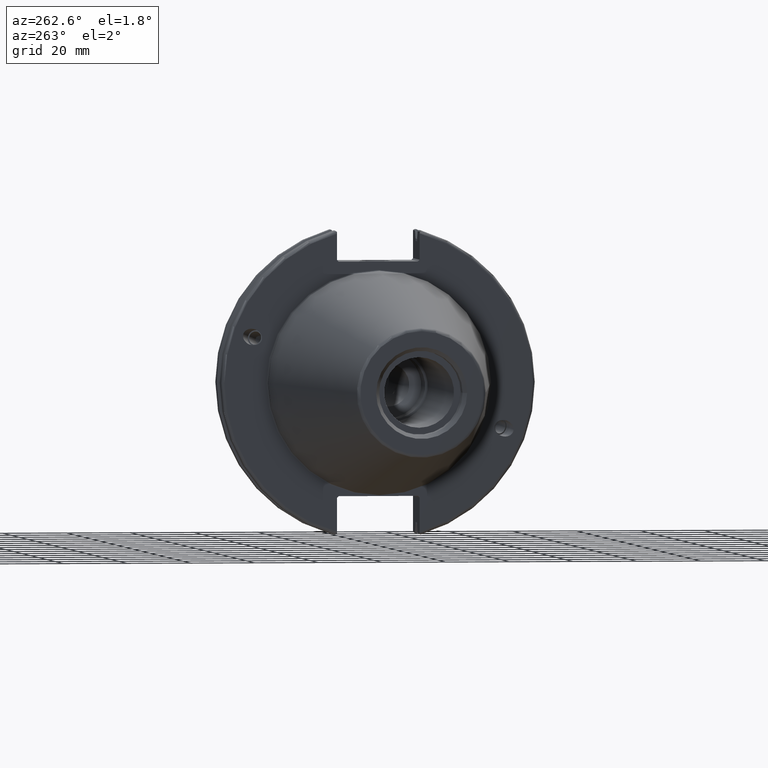
[diagram: clean part render]
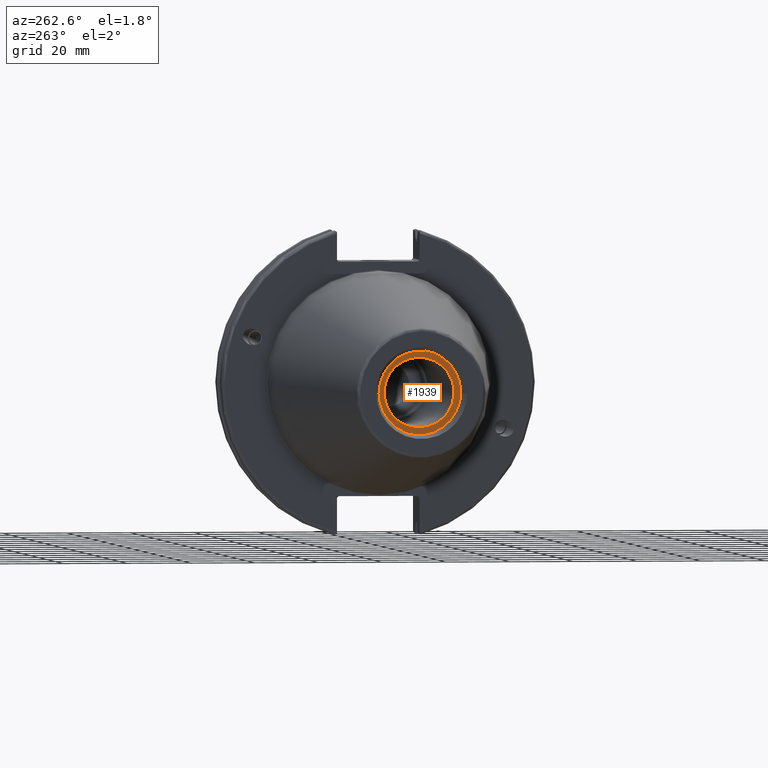
[diagram: same view with one face highlighted and labeled with its STEP entity id]
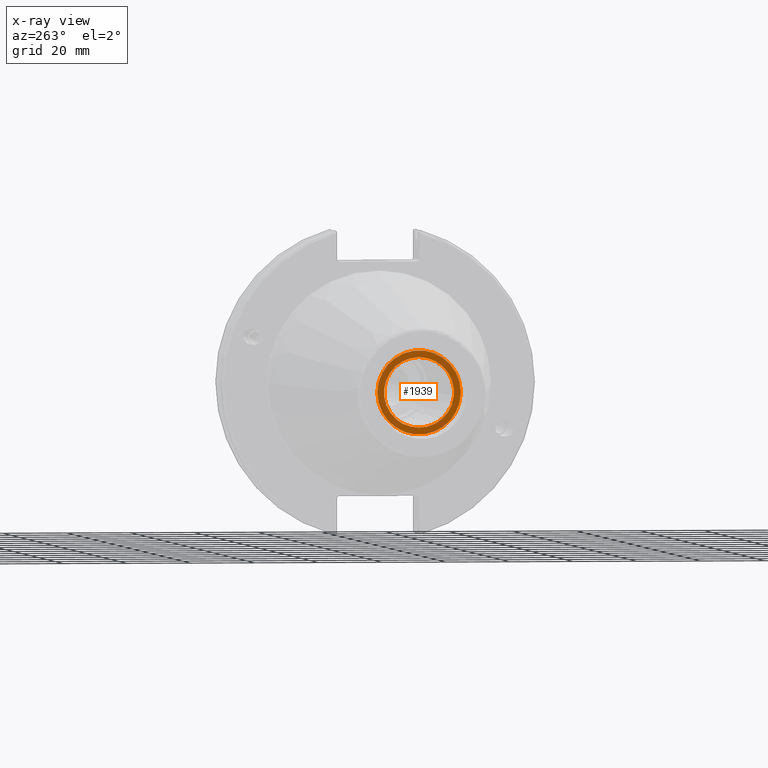
[diagram: x-ray of the same camera — body ghosted, the highlighted face saturated]
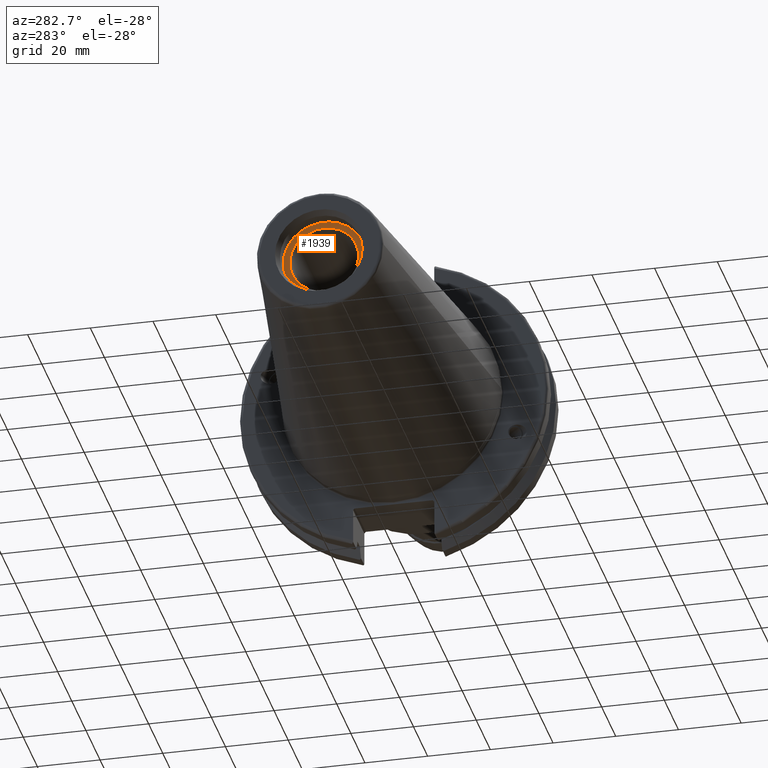
[diagram: same view with one face highlighted and labeled with its STEP entity id]
A machine part, auxiliary view. The second image highlights one B-rep face of the part: STEP entity #1939.
The next image is the same camera in x-ray: the body ghosted, the highlighted face saturated — about 0% of this face is hidden behind the body in this view.
A second angle (auxiliary view) of the same face is appended — the face is thin or edge-on in the first view.
In plain terms, the highlighted planar face has unit normal (-1, 0, 0).
Its self-contained STEP definition (entity closure, byte-faithful):
#69=PLANE('',#2201);
#108=FACE_BOUND('',#401,.T.);
#273=FACE_OUTER_BOUND('',#400,.T.);
#400=EDGE_LOOP('',(#1797));
#401=EDGE_LOOP('',(#1798));
#709=CIRCLE('',#2126,10.9855);
#737=CIRCLE('',#2197,13.1);
#875=VERTEX_POINT('',#3532);
#930=VERTEX_POINT('',#3839);
#1119=EDGE_CURVE('',#875,#875,#709,.T.);
#1216=EDGE_CURVE('',#930,#930,#737,.T.);
#1797=ORIENTED_EDGE('',*,*,#1216,.F.);
#1798=ORIENTED_EDGE('',*,*,#1119,.T.);
#1939=ADVANCED_FACE('',(#273,#108),#69,.T.);
#2126=AXIS2_PLACEMENT_3D('',#3533,#2586,#2587);
#2197=AXIS2_PLACEMENT_3D('',#3840,#2773,#2774);
#2201=AXIS2_PLACEMENT_3D('',#3848,#2784,#2785);
#2586=DIRECTION('center_axis',(1.,0.,0.));
#2587=DIRECTION('ref_axis',(0.,0.,1.));
#2773=DIRECTION('center_axis',(1.,0.,0.));
#2774=DIRECTION('ref_axis',(0.,0.,-1.));
#2784=DIRECTION('center_axis',(-1.,0.,0.));
#2785=DIRECTION('ref_axis',(0.,0.,1.));
#3532=CARTESIAN_POINT('',(-95.25,1.34533574120333E-15,-10.9855));
#3533=CARTESIAN_POINT('Origin',(-95.25,0.,0.));
#3839=CARTESIAN_POINT('',(-95.25,-13.1,-1.60428730688303E-15));
#3840=CARTESIAN_POINT('Origin',(-95.25,0.,0.));
#3848=CARTESIAN_POINT('Origin',(-95.25,13.1,0.));